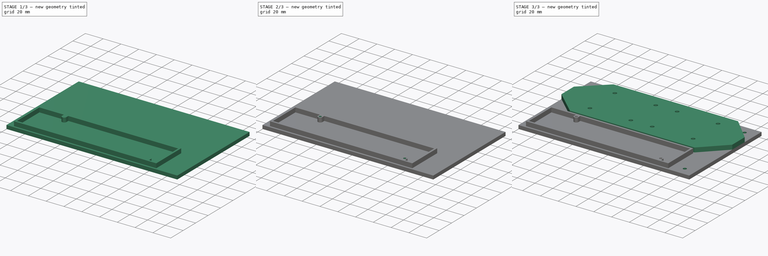
[diagram: build sequence overview — one tinted view per stage of 3, left to right]
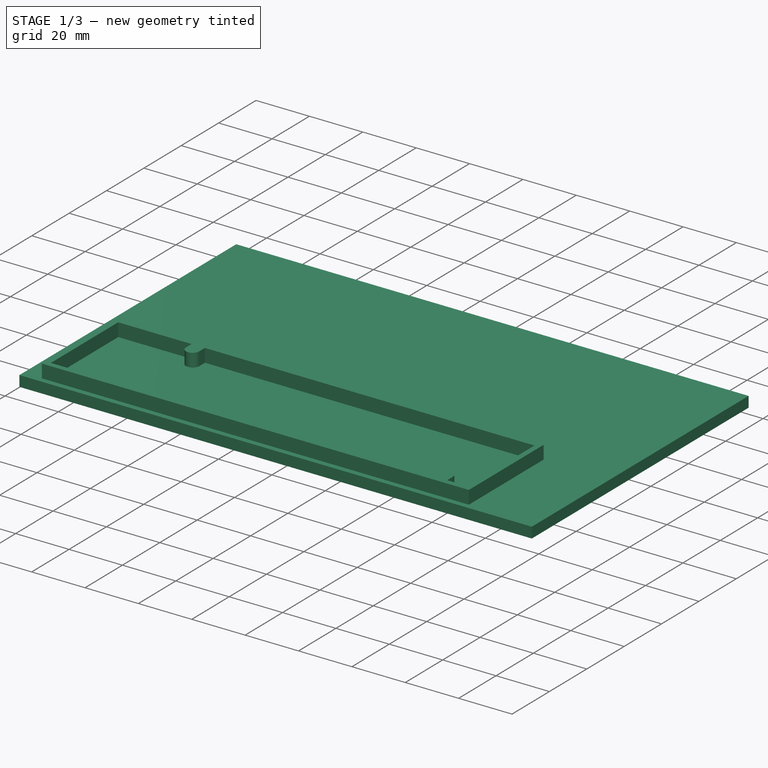
[diagram: stage 1 of 3 — iso view after this stage's code; geometry added in this stage tinted green]
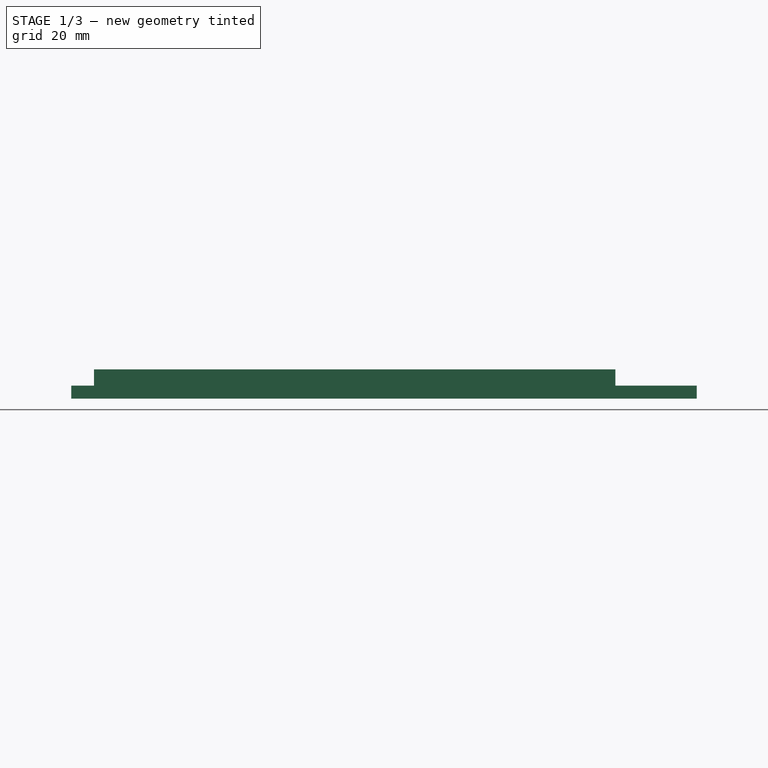
[diagram: stage 1 of 3 — front view after this stage's code; geometry added in this stage tinted green]
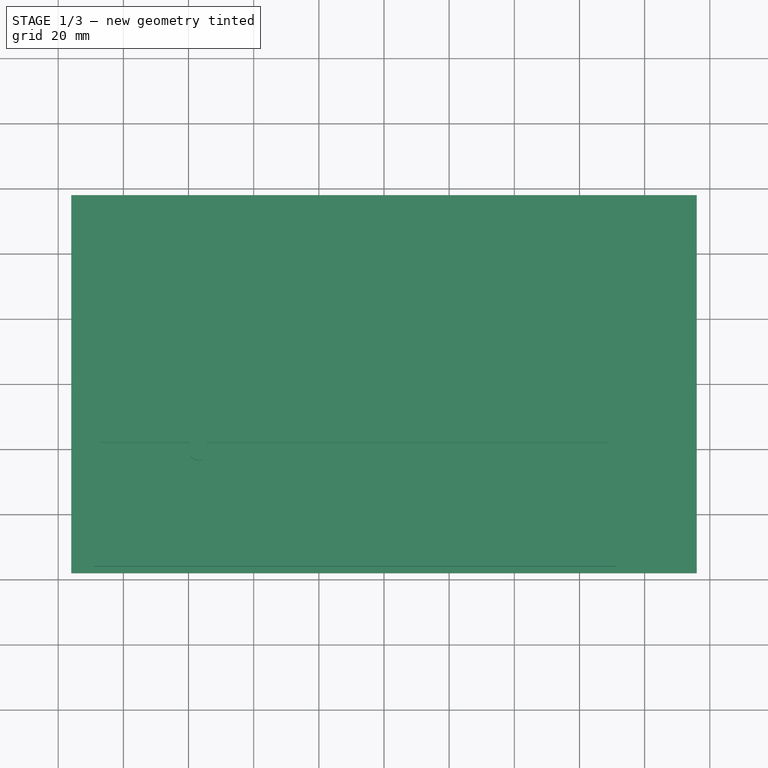
[diagram: stage 1 of 3 — top view after this stage's code; geometry added in this stage tinted green]
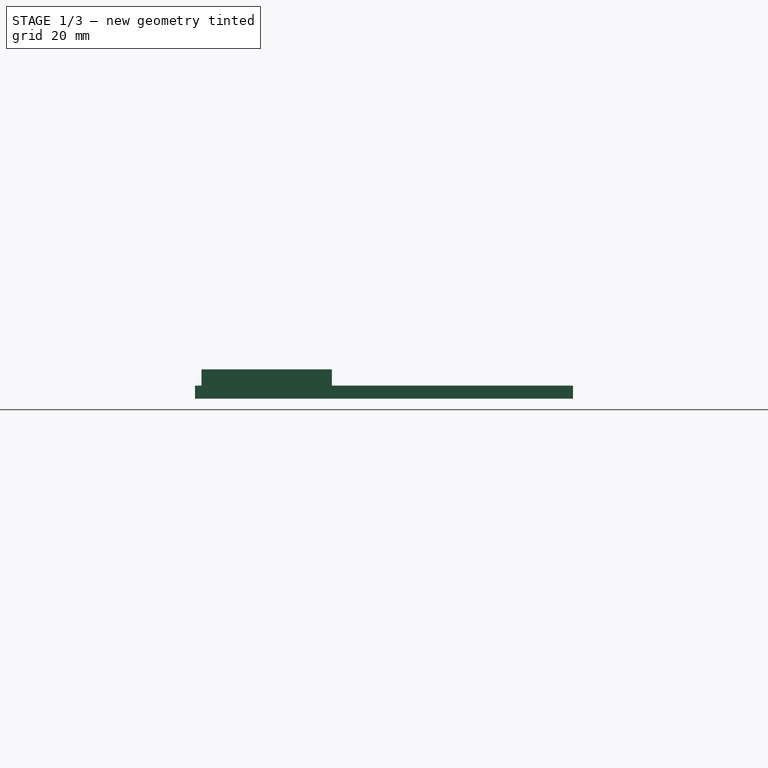
[diagram: stage 1 of 3 — right view after this stage's code; geometry added in this stage tinted green]
FCSTD DOCUMENT  (FreeCAD 0.19R)
Label: bottom_chassis
License: All rights reserved
LicenseURL: http://en.wikipedia.org/wiki/All_rights_reserved
objects: Sketcher::SketchObject×5, PartDesign::Pad×3, PartDesign::Pocket×2, PartDesign::Body×1
note: 16 computed .brp shape members not serialized (recipe doc carries the construction recipe); baked Part::Feature solids carry a one-line shape summary decoded from their .brp

FEATURE [Sketcher::SketchObject] Sketch
  FullyConstrained = true
  MapMode = 5
  Support = -> [XY_Plane]
  sketch-geometry (4):
    g0: LineSegment StartX=-96 StartY=58 StartZ=0 EndX=96 EndY=58 EndZ=0
    g1: LineSegment StartX=96 StartY=58 StartZ=0 EndX=96 EndY=-58 EndZ=0
    g2: LineSegment StartX=96 StartY=-58 StartZ=0 EndX=-96 EndY=-58 EndZ=0
    g3: LineSegment StartX=-96 StartY=-58 StartZ=0 EndX=-96 EndY=58 EndZ=0
  constraints (10):
    c: Coincident(g0,g1)
    c: Coincident(g1,g2)
    c: Coincident(g2,g3)
    c: Coincident(g3,g0)
    c: Horizontal(g0)
    c: Vertical(g3)
    c: Symmetric(g1,g0,g-1)
    c: Symmetric(g2,g1,g-2)
    c: DistanceY(g1,g1) = 116
    c: DistanceX(g2,g2) = 192
FEATURE [PartDesign::Pad] Pad
  Direction = (1,1,1)
  Length = 4
  Length2 = 100
  Profile = -> Sketch
  Type = 0
FEATURE [Sketcher::SketchObject] Sketch001
  FullyConstrained = true
  MapMode = 5
  Placement = pos=(0,0,4) rot=(0,0,1;0rad)
  Support = -> [Pad]
  sketch-geometry (24):
    g0: LineSegment StartX=-89 StartY=-16 StartZ=0 EndX=71 EndY=-16 EndZ=0
    g1: LineSegment StartX=71 StartY=-16 StartZ=0 EndX=71 EndY=-56 EndZ=0
    g2: LineSegment StartX=71 StartY=-56 StartZ=0 EndX=-89 EndY=-56 EndZ=0
    g3: LineSegment StartX=-89 StartY=-56 StartZ=0 EndX=-89 EndY=-16 EndZ=0
    g4: LineSegment StartX=-87 StartY=-18 StartZ=0 EndX=69 EndY=-18 EndZ=0
    g5: LineSegment StartX=69 StartY=-18 StartZ=0 EndX=69 EndY=-54 EndZ=0
    g6: LineSegment StartX=69 StartY=-54 StartZ=0 EndX=-87 EndY=-54 EndZ=0
    g7: LineSegment StartX=-87 StartY=-54 StartZ=0 EndX=-87 EndY=-18 EndZ=0
    g8: LineSegment StartX=-96 StartY=58 StartZ=0 EndX=96 EndY=58 EndZ=0
    g9: LineSegment StartX=96 StartY=58 StartZ=0 EndX=96 EndY=-58 EndZ=0
    g10: LineSegment StartX=96 StartY=-58 StartZ=0 EndX=-96 EndY=-58 EndZ=0
    g11: LineSegment StartX=-96 StartY=-58 StartZ=0 EndX=-96 EndY=58 EndZ=0
    g12: GeomPoint X=-57 Y=-21 Z=0
    g13: GeomPoint X=59 Y=-51 Z=0
    g14: ArcOfCircle CenterX=59 CenterY=-51 CenterZ=0 NormalX=0 NormalY=0 NormalZ=1 AngleXU=0 Radius=2.5 StartAngle=-7.89324e-11 EndAngle=3.14159
    g15: ArcOfCircle CenterX=-57 CenterY=-21 CenterZ=0 NormalX=0 NormalY=0 NormalZ=1 AngleXU=0 Radius=2.5 StartAngle=3.14159 EndAngle=6.28319
    g16: LineSegment StartX=-59.5 StartY=-18 StartZ=0 EndX=-59.5 EndY=-21 EndZ=0
    g17: LineSegment StartX=-54.5 StartY=-21 StartZ=0 EndX=-54.5 EndY=-18 EndZ=0
    g18: LineSegment StartX=56.5 StartY=-51 StartZ=0 EndX=56.5 EndY=-54 EndZ=0
    g19: LineSegment StartX=61.5 StartY=-51 StartZ=0 EndX=61.5 EndY=-54 EndZ=0
    g20: LineSegment StartX=69 StartY=-54 StartZ=0 EndX=61.5 EndY=-54 EndZ=0
    g21: LineSegment StartX=56.5 StartY=-54 StartZ=0 EndX=-87 EndY=-54 EndZ=0
    g22: LineSegment StartX=-59.5 StartY=-18 StartZ=0 EndX=-87 EndY=-18 EndZ=0
    g23: LineSegment StartX=-54.5 StartY=-18 StartZ=0 EndX=69 EndY=-18 EndZ=0
  constraints (62):
    c: Coincident(g0,g1)
    c: Coincident(g1,g2)
    c: Coincident(g2,g3)
    c: Coincident(g3,g0)
    c: Horizontal(g0)
    c: Horizontal(g2)
    c: Vertical(g1)
    c: Vertical(g3)
    c: DistanceX(g2,g2) = 160
    c: DistanceY(g3,g3) = 40
    c: Coincident(g4,g5)
    c: Coincident(g5,g6)
    c: Coincident(g6,g7)
    c: Coincident(g7,g4)
    c: Horizontal(g4)
    c: Horizontal(g6)
    c: Vertical(g5)
    c: Vertical(g7)
    c: DistanceY(g4,g0) = 2
    c: DistanceY(g2,g6) = 2
    c: DistanceX(g0,g4) = 2
    c: DistanceX(g4,g0) = 2
    c: Coincident(g8,g9)
    c: Coincident(g9,g10)
    c: Coincident(g10,g11)
    c: Coincident(g11,g8)
    c: Horizontal(g8)
    c: Vertical(g11)
    c: Symmetric(g10,g9,g-2)
    c: Symmetric(g8,g9,g-1)
    c: DistanceY(g9,g9) = 116
    c: DistanceX(g10,g10) = 192
    c: DistanceX(g1,g9) = 25
    c: DistanceY(g9,g1) = 2
    c: DistanceX(g12,g13) = 116
    c: DistanceX(g13,g1) = 12
    c: DistanceY(g1,g13) = 5
    c: DistanceY(g13,g12) = 30
    c: Coincident(g14,g13)
    c: Coincident(g15,g12)
    c: PointOnObject(g16,g4)
    c: PointOnObject(g17,g4)
    c: PointOnObject(g18,g6)
    c: PointOnObject(g19,g6)
    c: Coincident(g20,g5)
    c: Coincident(g20,g19)
    c: Coincident(g21,g18)
    c: Coincident(g21,g7)
    c: Coincident(g22,g16)
    c: Coincident(g22,g7)
    c: Coincident(g23,g17)
    c: Coincident(g23,g5)
    c: Perpendicular(g22,g16)
    c: Perpendicular(g23,g17)
    c: Tangent(g17,g15) = -1.5708
    c: Tangent(g16,g15) = -1.5708
    c: Perpendicular(g21,g18)
    c: Perpendicular(g20,g19)
    c: Tangent(g19,g14) = 1.5708
    c: Tangent(g18,g14) = -1.5708
    c: Equal(g14,g15)
    c: Diameter(g15) = 5
FEATURE [PartDesign::Pad] Pad001
  BaseFeature = -> Pad
  Direction = (1,1,1)
  Length = 5
  Length2 = 100
  Profile = -> Sketch001
  Type = 0
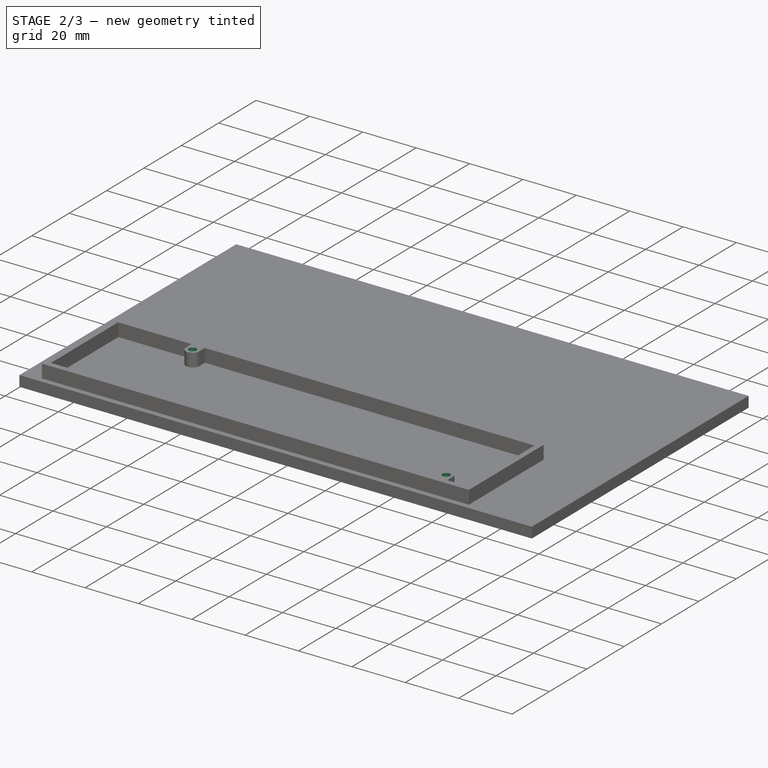
[diagram: stage 2 of 3 — iso view after this stage's code; geometry added in this stage tinted green]
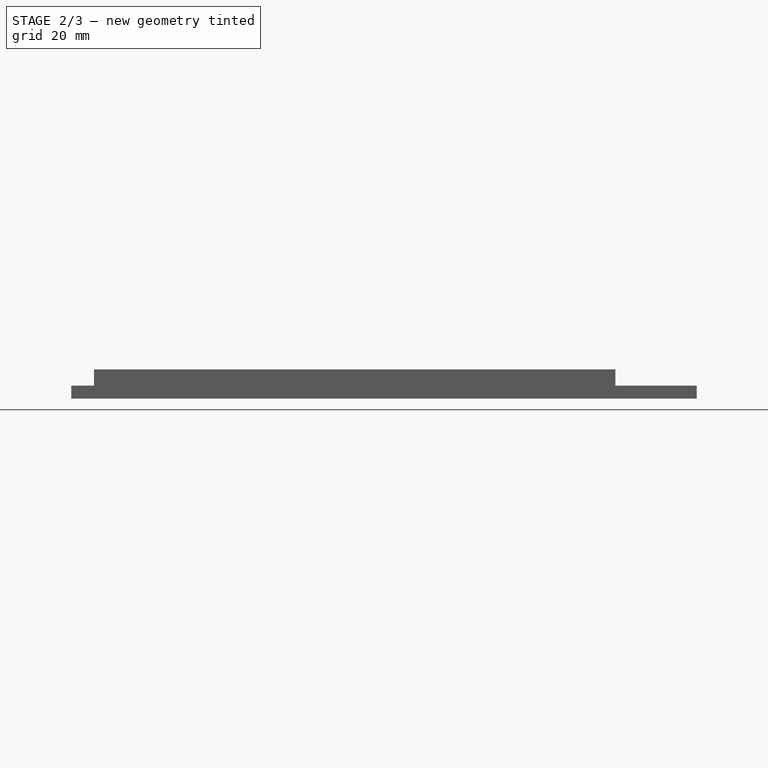
[diagram: stage 2 of 3 — front view after this stage's code; geometry added in this stage tinted green]
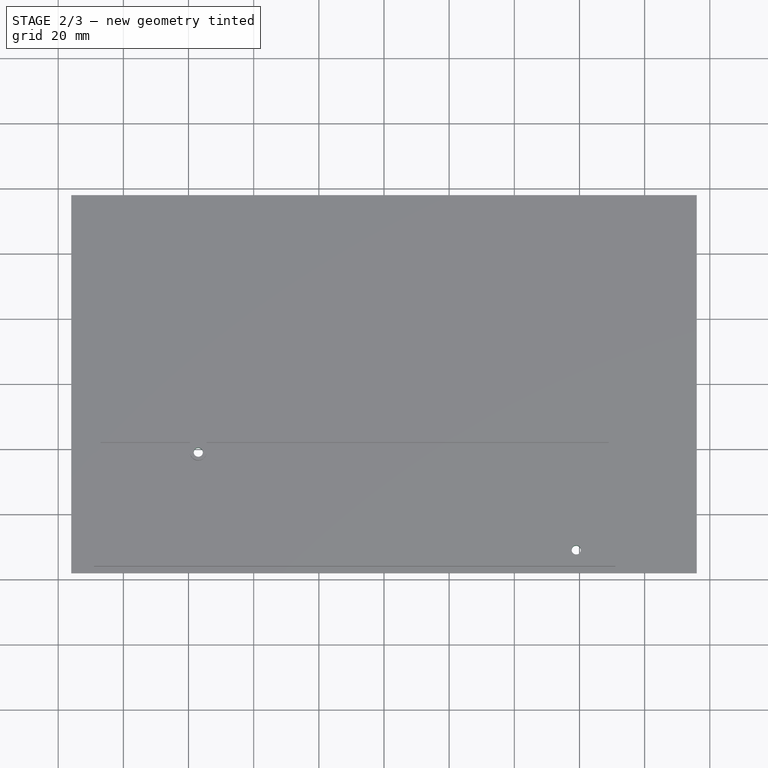
[diagram: stage 2 of 3 — top view after this stage's code; geometry added in this stage tinted green]
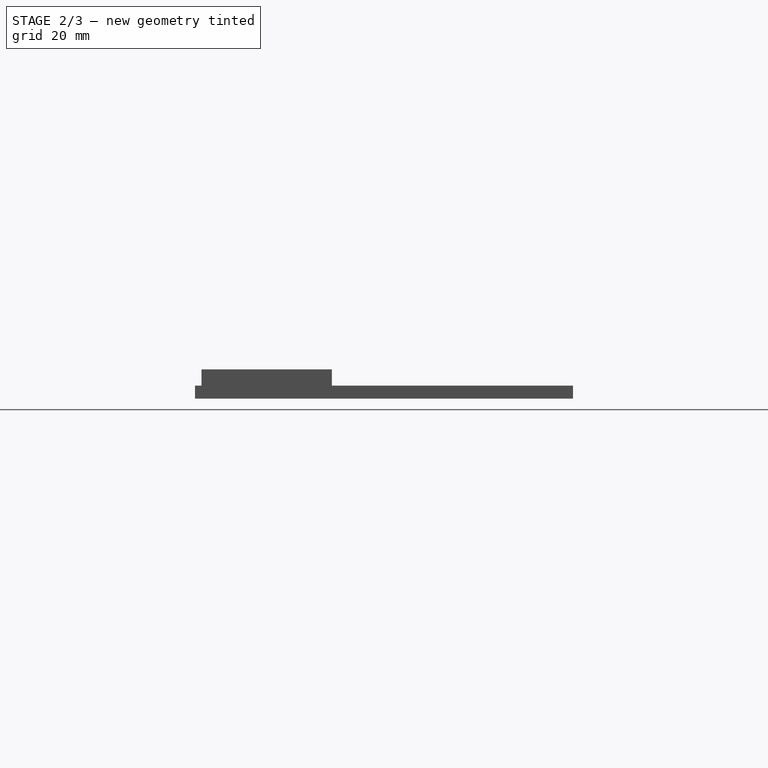
[diagram: stage 2 of 3 — right view after this stage's code; geometry added in this stage tinted green]
FEATURE [Sketcher::SketchObject] Sketch002
  FullyConstrained = true
  MapMode = 5
  Placement = pos=(0,0,9) rot=(0,0,1;0rad)
  Support = -> [Pad001]
  sketch-geometry (3):
    g0: Circle CenterX=-57 CenterY=-21 CenterZ=0 NormalX=0 NormalY=0 NormalZ=1 AngleXU=0 Radius=1.4
    g1: Circle CenterX=59 CenterY=-51 CenterZ=0 NormalX=0 NormalY=0 NormalZ=1 AngleXU=0 Radius=1.4
    g2: GeomPoint X=96 Y=-58 Z=0
  constraints (8):
    c: DistanceX(g-1,g2) = 96
    c: DistanceY(g2,g-1) = 58
    c: DistanceY(g2,g1) = 7
    c: DistanceY(g1,g0) = 30
    c: DistanceX(g0,g1) = 116
    c: DistanceX(g1,g2) = 37
    c: Equal(g1,g0)
    c: Diameter(g1) = 2.8
FEATURE [PartDesign::Pocket] Pocket
  BaseFeature = -> Pad001
  Length = 5
  Length2 = 100
  Profile = -> Sketch002
  Type = 1
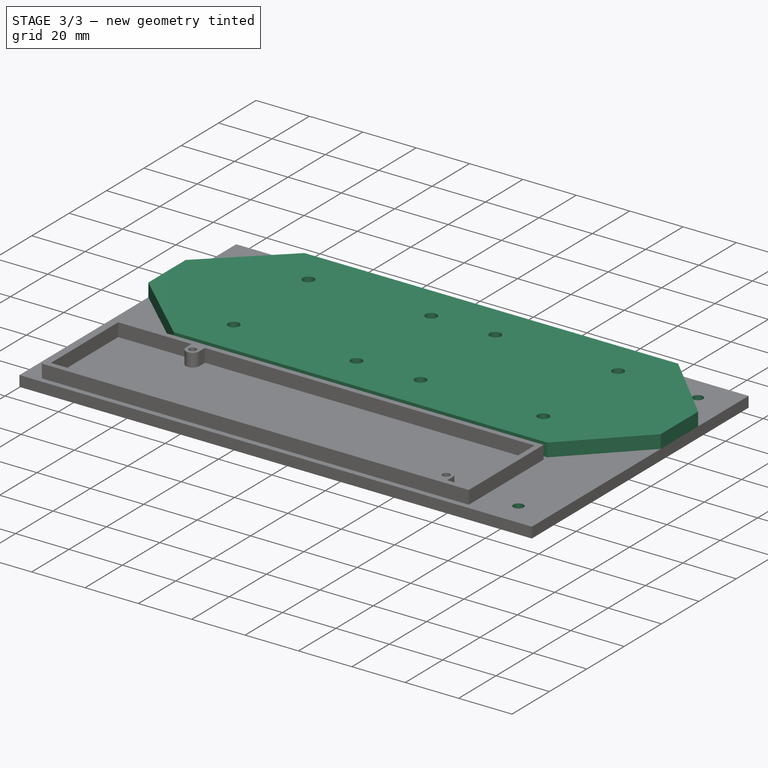
[diagram: stage 3 of 3 — iso view after this stage's code; geometry added in this stage tinted green]
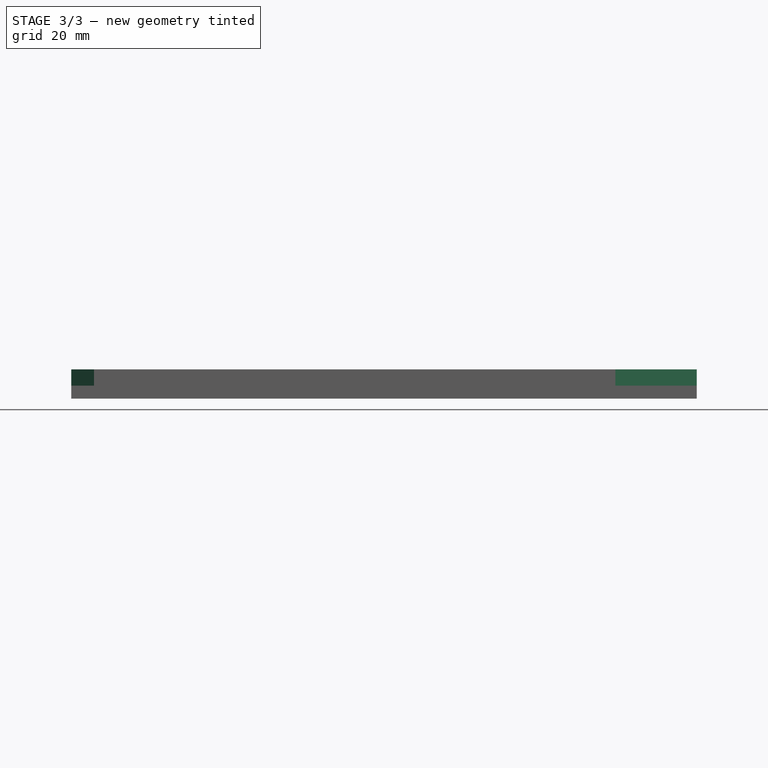
[diagram: stage 3 of 3 — front view after this stage's code; geometry added in this stage tinted green]
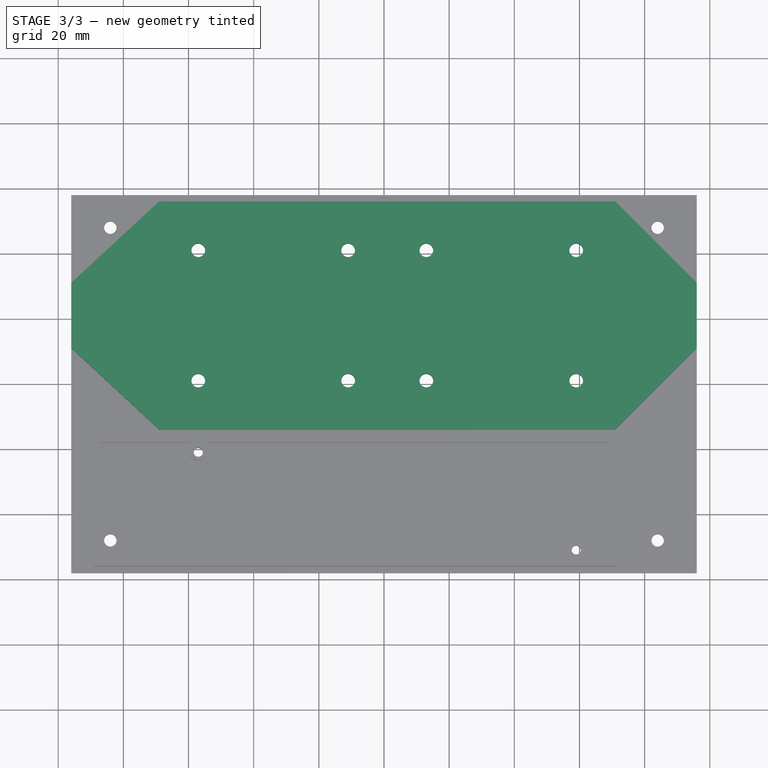
[diagram: stage 3 of 3 — top view after this stage's code; geometry added in this stage tinted green]
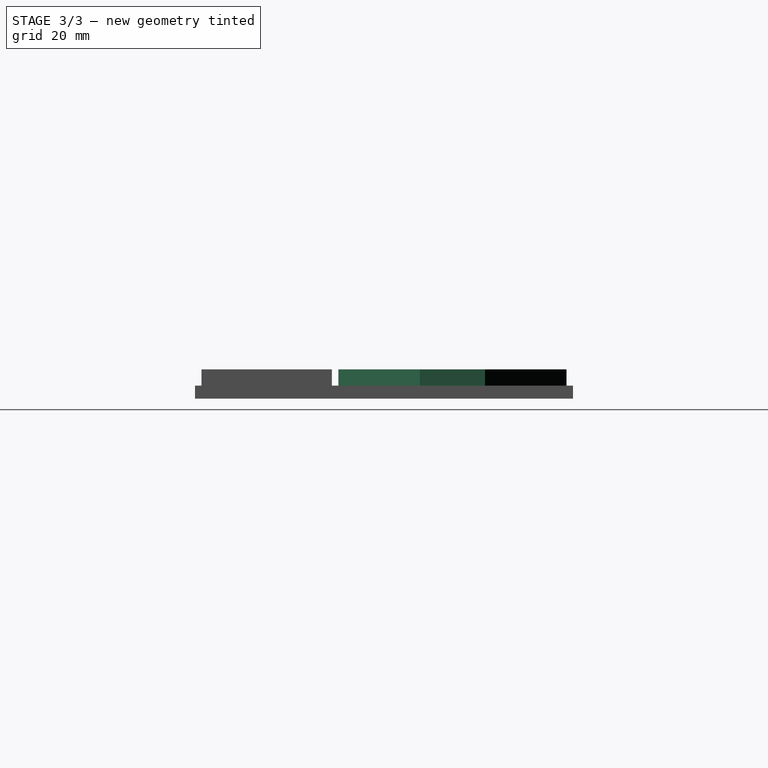
[diagram: stage 3 of 3 — right view after this stage's code; geometry added in this stage tinted green]
FEATURE [Sketcher::SketchObject] Sketch003
  FullyConstrained = true
  MapMode = 5
  Placement = pos=(0,0,4) rot=(0,0,1;0rad)
  Support = -> [Pocket]
  sketch-geometry (12):
    g0: GeomPoint X=96 Y=58 Z=0
    g1: LineSegment StartX=-69 StartY=56 StartZ=0 EndX=71 EndY=56 EndZ=0
    g2: LineSegment StartX=71 StartY=56 StartZ=0 EndX=71 EndY=-14 EndZ=0
    g3: LineSegment StartX=71 StartY=-14 StartZ=0 EndX=-69 EndY=-14 EndZ=0
    g4: LineSegment StartX=-69 StartY=-14 StartZ=0 EndX=-69 EndY=56 EndZ=0
    g5: GeomPoint X=-96 Y=58 Z=0
    g6: LineSegment StartX=-69 StartY=56 StartZ=0 EndX=-96 EndY=31 EndZ=0
    g7: LineSegment StartX=-96 StartY=31 StartZ=0 EndX=-96 EndY=11 EndZ=0
    g8: LineSegment StartX=-96 StartY=11 StartZ=0 EndX=-69 EndY=-14 EndZ=0
    g9: LineSegment StartX=71 StartY=56 StartZ=0 EndX=96 EndY=31 EndZ=0
    g10: LineSegment StartX=96 StartY=31 StartZ=0 EndX=96 EndY=11 EndZ=0
    g11: LineSegment StartX=96 StartY=11 StartZ=0 EndX=71 EndY=-14 EndZ=0
  constraints (32):
    c: DistanceY(g-1,g0) = 58
    c: DistanceX(g-1,g0) = 96
    c: Coincident(g1,g2)
    c: Coincident(g2,g3)
    c: Coincident(g3,g4)
    c: Coincident(g4,g1)
    c: Horizontal(g1)
    c: Horizontal(g3)
    c: Vertical(g2)
    c: Vertical(g4)
    c: DistanceX(g1,g1) = 140
    c: DistanceY(g4,g4) = 70
    c: DistanceX(g1,g0) = 25
    c: DistanceY(g1,g0) = 2
    c: DistanceX(g5,g-1) = 96
    c: DistanceY(g-1,g5) = 58
    c: Coincident(g1,g6)
    c: Coincident(g6,g7)
    c: Vertical(g7)
    c: Coincident(g7,g8)
    c: Coincident(g8,g3)
    c: Coincident(g1,g9)
    c: Coincident(g9,g10)
    c: Vertical(g10)
    c: Coincident(g10,g11)
    c: Coincident(g11,g3)
    c: PointOnObject(g0,g10)
    c: PointOnObject(g5,g7)
    c: Equal(g6,g8)
    c: Equal(g9,g11)
    c: DistanceY(g7,g7) = 20
    c: Equal(g7,g10)
FEATURE [PartDesign::Pad] Pad002
  BaseFeature = -> Pocket
  Direction = (1,1,1)
  Length = 5
  Length2 = 100
  Profile = -> Sketch003
  Type = 0
FEATURE [Sketcher::SketchObject] Sketch004
  FullyConstrained = true
  MapMode = 5
  Placement = pos=(0,0,9) rot=(0,0,1;0rad)
  Support = -> [Pad002]
  sketch-geometry (14):
    g0: GeomPoint X=96 Y=58 Z=0
    g1: Circle CenterX=-84 CenterY=48 CenterZ=0 NormalX=0 NormalY=0 NormalZ=1 AngleXU=0 Radius=1.9
    g2: Circle CenterX=-84 CenterY=-48 CenterZ=0 NormalX=0 NormalY=0 NormalZ=1 AngleXU=0 Radius=1.9
    g3: Circle CenterX=84 CenterY=-48 CenterZ=0 NormalX=0 NormalY=0 NormalZ=1 AngleXU=0 Radius=1.9
    g4: Circle CenterX=84 CenterY=48 CenterZ=0 NormalX=0 NormalY=0 NormalZ=1 AngleXU=0 Radius=1.9
    g5: Circle CenterX=-57 CenterY=41 CenterZ=0 NormalX=0 NormalY=0 NormalZ=1 AngleXU=0 Radius=2.1
    g6: Circle CenterX=-11 CenterY=41 CenterZ=0 NormalX=0 NormalY=0 NormalZ=1 AngleXU=0 Radius=2.1
    g7: Circle CenterX=-57 CenterY=1 CenterZ=0 NormalX=0 NormalY=0 NormalZ=1 AngleXU=0 Radius=2.1
    g8: Circle CenterX=-11 CenterY=1 CenterZ=0 NormalX=0 NormalY=0 NormalZ=1 AngleXU=0 Radius=2.1
    g9: Circle CenterX=13 CenterY=41 CenterZ=0 NormalX=0 NormalY=0 NormalZ=1 AngleXU=0 Radius=2.1
    g10: Circle CenterX=59 CenterY=41 CenterZ=0 NormalX=0 NormalY=0 NormalZ=1 AngleXU=0 Radius=2.1
    g11: Circle CenterX=59 CenterY=1 CenterZ=0 NormalX=0 NormalY=0 NormalZ=1 AngleXU=0 Radius=2.1
    g12: Circle CenterX=13 CenterY=1 CenterZ=0 NormalX=0 NormalY=0 NormalZ=1 AngleXU=0 Radius=2.1
    g13: LineSegment StartX=-84 StartY=21 StartZ=0 EndX=84 EndY=21 EndZ=0
  constraints (36):
    c: DistanceX(g-1,g0) = 96
    c: DistanceY(g-1,g0) = 58
    c: Symmetric(g4,g1,g-2)
    c: Symmetric(g4,g3,g-1)
    c: Horizontal(g2,g3)
    c: Vertical(g2,g1)
    c: Equal(g1,g4)
    c: Equal(g4,g3)
    c: Equal(g3,g2)
    c: Diameter(g1) = 3.8
    c: DistanceX(g4,g0) = 12
    c: DistanceY(g4,g0) = 10
    c: Horizontal(g13)
    c: Vertical(g13,g4)
    c: Vertical(g13,g1)
    c: DistanceY(g13,g0) = 37
    c: Symmetric(g11,g10,g13)
    c: Horizontal(g9,g10)
    c: Horizontal(g10,g6)
    c: Horizontal(g6,g5)
    c: Equal(g10,g11)
    c: Equal(g11,g12)
    c: Equal(g12,g9)
    c: Equal(g9,g6)
    c: Equal(g6,g8)
    c: Equal(g8,g7)
    c: Equal(g7,g5)
    c: Symmetric(g7,g5,g13)
    c: Symmetric(g8,g6,g13)
    c: Symmetric(g12,g9,g13)
    c: DistanceY(g11,g10) = 40
    c: DistanceX(g10,g0) = 37
    c: DistanceX(g6,g9) = 24
    c: DistanceX(g9,g10) = 46
    c: DistanceX(g5,g6) = 46
    c: Diameter(g5) = 4.2
FEATURE [PartDesign::Pocket] Pocket001
  BaseFeature = -> Pad002
  Length = 5
  Length2 = 100
  Profile = -> Sketch004
  Type = 1
FEATURE [PartDesign::Body] Body
  Group = -> [Sketch,Pad,Sketch001,Pad001,Sketch002,Pocket,Sketch003,Pad002,Sketch004,Pocket001]
  Origin = -> Origin
  Tip = -> Pocket001
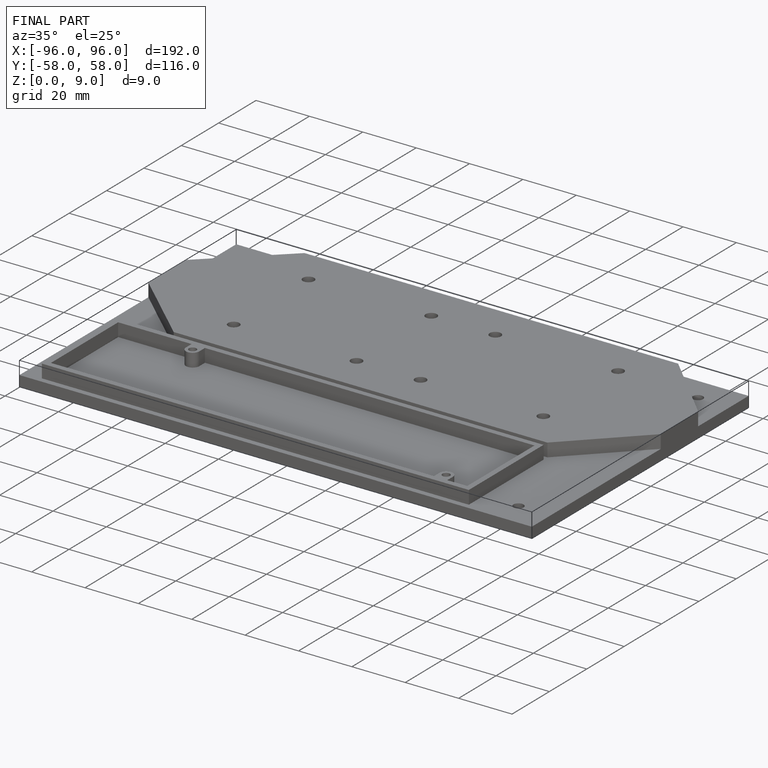
[diagram: finished part — iso view with bounding-box wireframe]
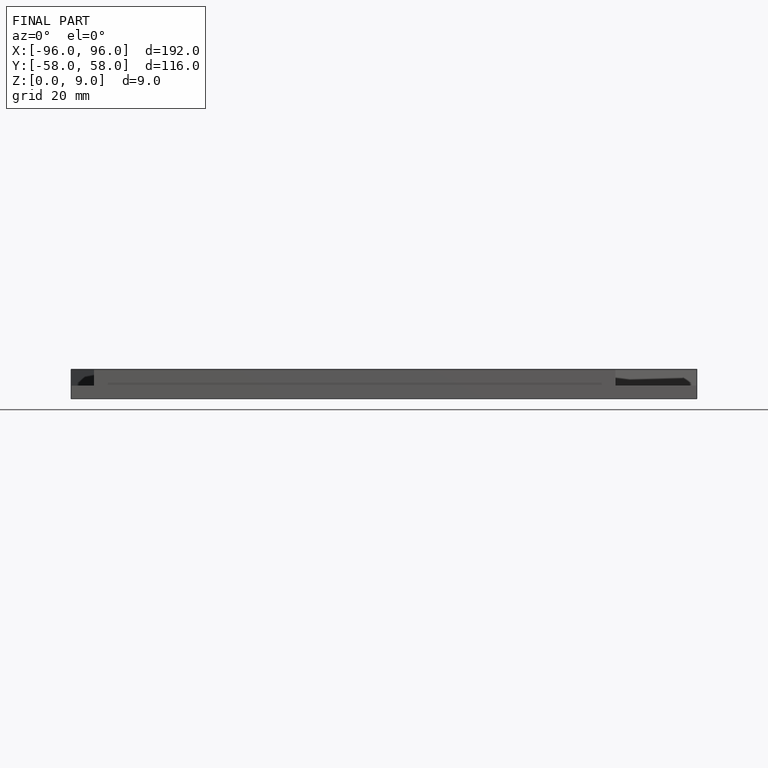
[diagram: finished part — front view with bounding-box wireframe]
